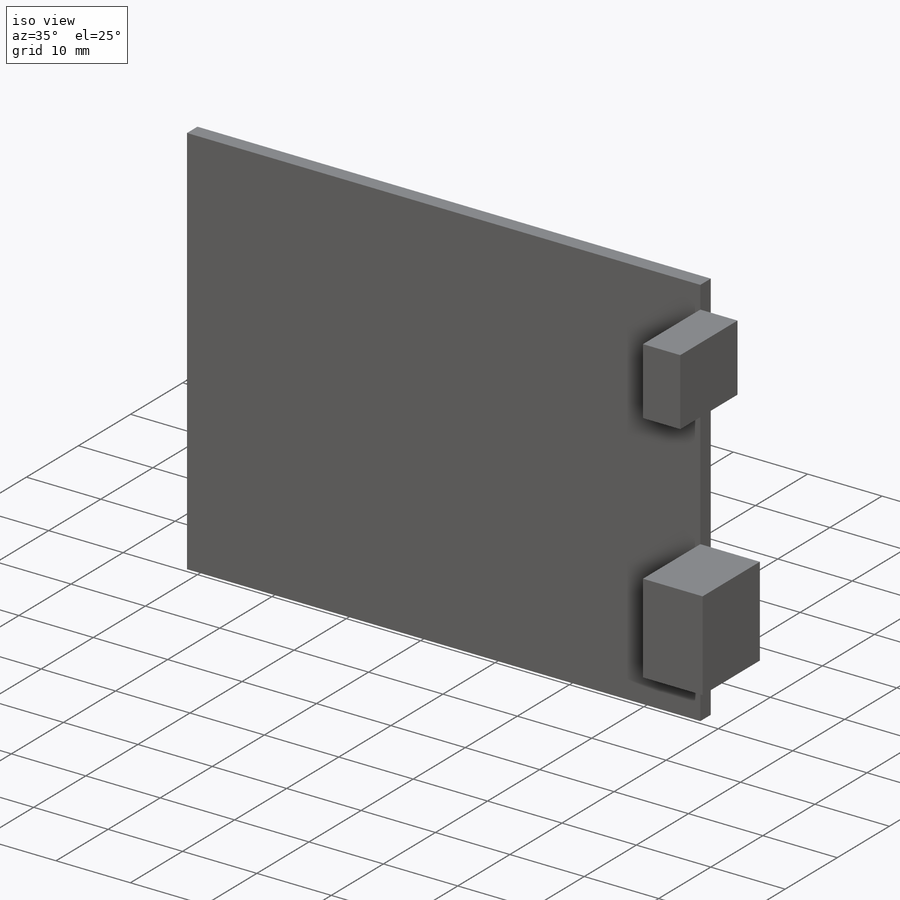
[diagram: iso view]
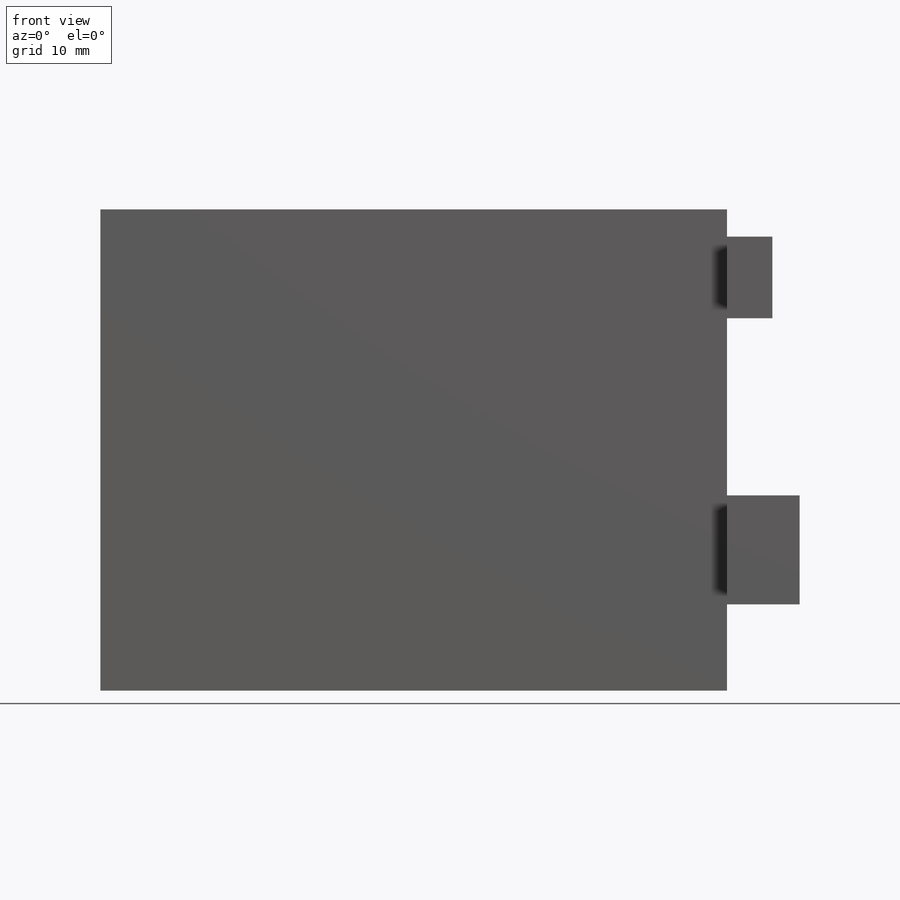
[diagram: front view]
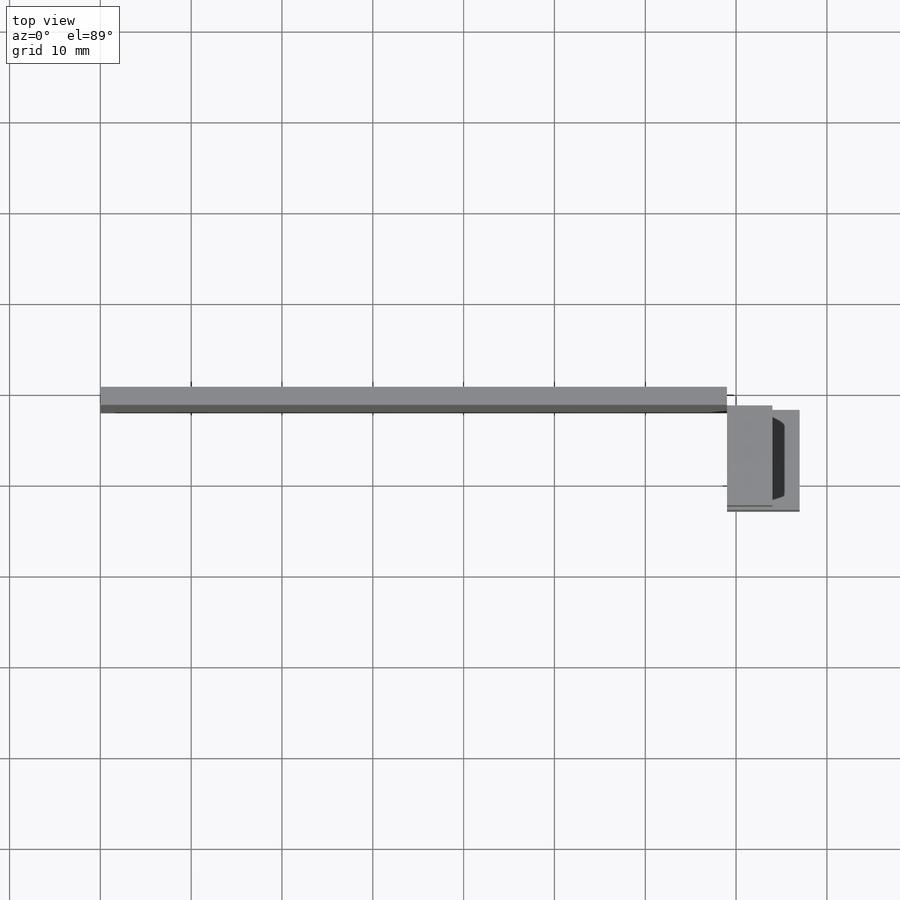
[diagram: top view]
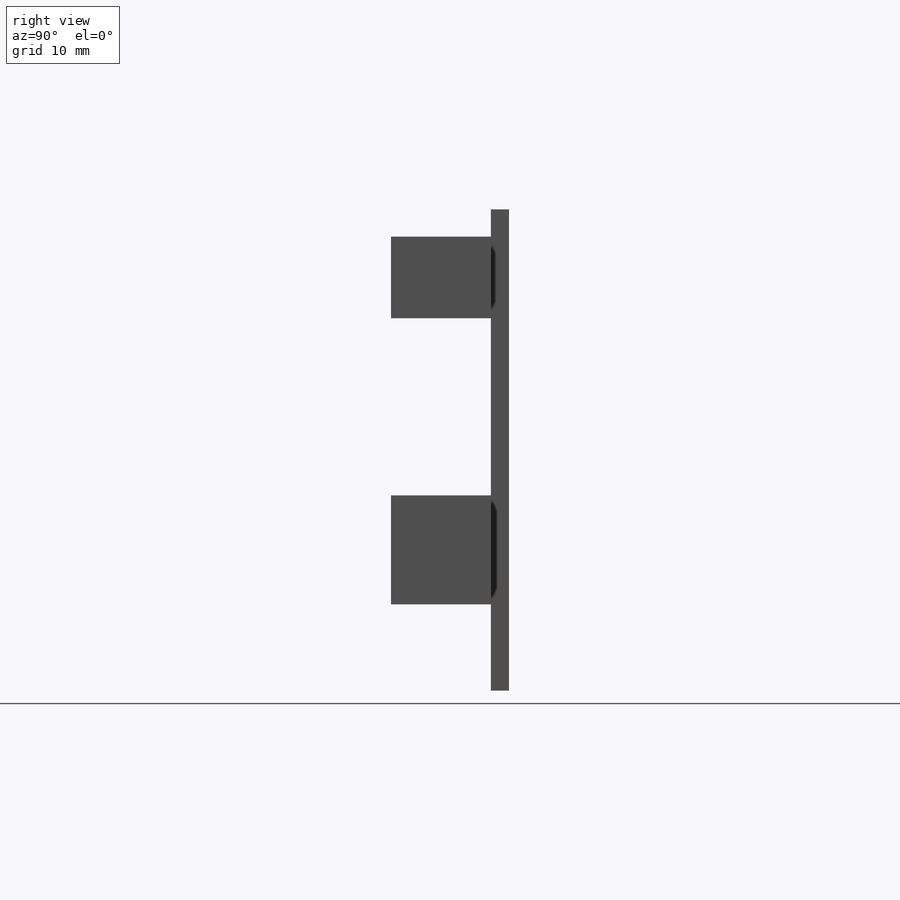
[diagram: right view]
SOLIDWORKS PART (.sldprt)
format: sldprt  version: not decoded by parser v0  size: 161,280 bytes
history: native  units: mm
features: plane x3, sketch x3, extrude x3, material x1 (+9 scaffold rows collapsed)
feature tree (19):
  scaffold x9  (default folders/planes/origin — collapsed)
  material  "Material <não especificado>"
  plane  "Plano frontal"
  plane  "Plano superior"
  plane  "Plano direito"
  sketch  "Esboço1"  dims[c1.D1=~75.997994mm c1.D2=~91.157893mm c2.D1=69.0mm c2.D2=53.0mm]
  extrude  "Ressalto-extrusão1"  Depth=2mm
  sketch  "Esboço2"  dims[c1.D1=~6.002779mm c1.D2=~10.91856mm c2.D1=11.0mm c2.D2=9.0mm c2.D3=3.0mm c2.D4=~10.265621mm c2.D5=~16.660349mm c3.D4=40.5mm c3.D5=11.0mm c3.D6=12.0mm]
  extrude  "Ressalto-extrusão2"  Depth=5mm
  sketch  "Esboço3"  dims[D1=0.0mm]
  extrude  "Ressalto-extrusão3"  Depth=3mm
decode coverage: 6 of 6 modeling features carry decoded parameters
note: ~ marks probable driven/reference dimensions
note: suppression state not decoded; provenance and decode notes live in map.json
